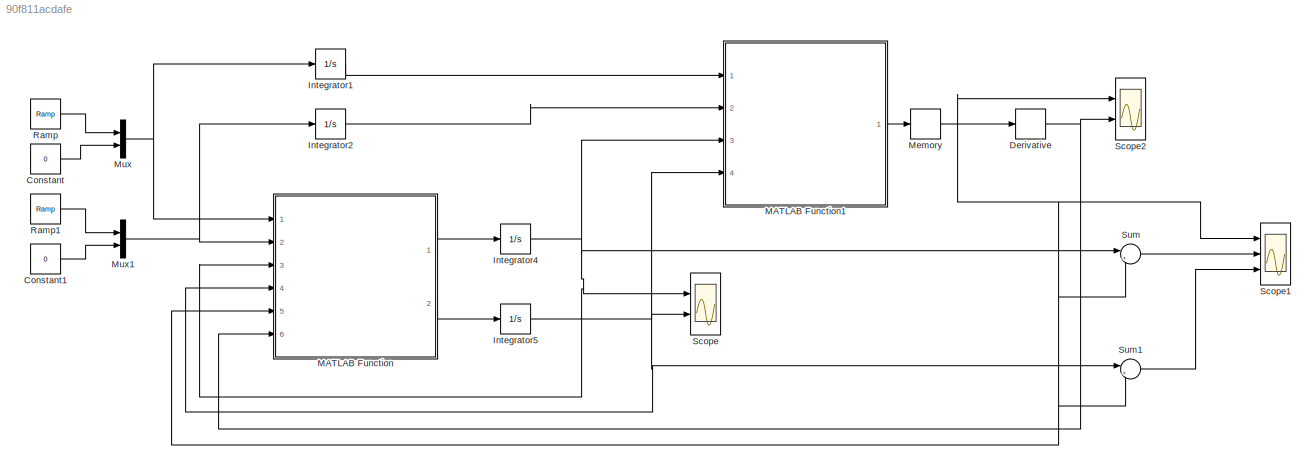
MODEL slx_90f811acdafe
KIND model
CONFIG AbsTol = auto
CONFIG EnableMultiTasking = off
CONFIG FixedStep = auto
CONFIG MaxStep = auto
CONFIG MinStep = auto
CONFIG RelTol = 1e-3
CONFIG SampleTimeConstraint = Unconstrained
CONFIG Solver = VariableStepAuto
CONFIG SolverName = VariableStepAuto
CONFIG StartTime = 0.0
CONFIG StopTime = 60
BLOCK [Constant] Constant
  Value = 0
BLOCK [Constant] Constant1
  Value = 0
BLOCK [Derivative] Derivative
BLOCK [Integrator] Integrator1
  InitialCondition = [0;0]
  Ports = [1, 1]
BLOCK [Integrator] Integrator2
  InitialCondition = [0;0]
  Ports = [1, 1]
BLOCK [Integrator] Integrator4
  InitialCondition = pi/4
  Ports = [1, 1]
BLOCK [Integrator] Integrator5
  InitialCondition = pi/4
  Ports = [1, 1]
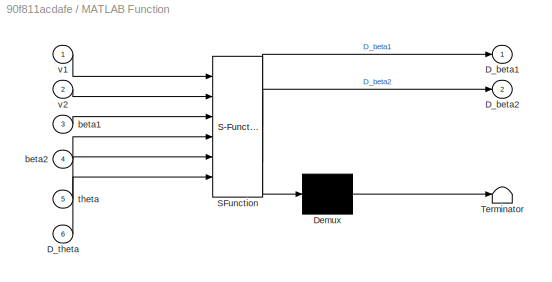
BLOCK [SubSystem] MATLAB Function
  ErrorFcn = Stateflow.Translate.translate
  PermitHierarchicalResolution = ExplicitOnly
  Ports = [6, 2]
  RequestExecContextInheritance = off
  SFBlockType = MATLAB Function
  TreatAsAtomicUnit = on
BLOCK [Demux] MATLAB Function/ Demux 
  Outputs = 1
  Ports = [1, 1]
BLOCK [S-Function] MATLAB Function/ SFunction 
  EnableBusSupport = on
  FunctionName = sf_sfun
  PortCounts = [6 3]
  Ports = [6, 3]
  SFcnIsStateOwnerBlock = off
  SFunctionDeploymentMode = off
  Tag = Stateflow S-Function Reverse_01 2
BLOCK [Terminator] MATLAB Function/ Terminator 
BLOCK [Outport] MATLAB Function/D_beta1
  IconDisplay = Port number
BLOCK [Outport] MATLAB Function/D_beta2
  IconDisplay = Port number
  Port = 2
BLOCK [Inport] MATLAB Function/D_theta
  IconDisplay = Port number
  Port = 6
BLOCK [Inport] MATLAB Function/beta1
  IconDisplay = Port number
  Port = 3
BLOCK [Inport] MATLAB Function/beta2
  IconDisplay = Port number
  Port = 4
BLOCK [Inport] MATLAB Function/theta
  IconDisplay = Port number
  Port = 5
BLOCK [Inport] MATLAB Function/v1
  IconDisplay = Port number
BLOCK [Inport] MATLAB Function/v2
  IconDisplay = Port number
  Port = 2
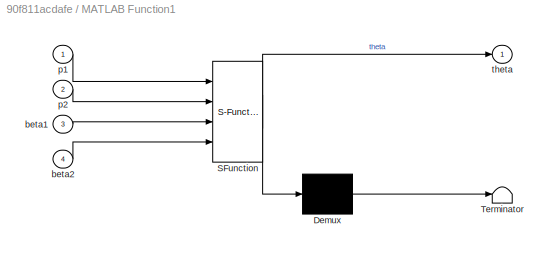
BLOCK [SubSystem] MATLAB Function1
  ErrorFcn = Stateflow.Translate.translate
  PermitHierarchicalResolution = ExplicitOnly
  Ports = [4, 1]
  RequestExecContextInheritance = off
  SFBlockType = MATLAB Function
  TreatAsAtomicUnit = on
BLOCK [Demux] MATLAB Function1/ Demux 
  Outputs = 1
  Ports = [1, 1]
BLOCK [S-Function] MATLAB Function1/ SFunction 
  EnableBusSupport = on
  FunctionName = sf_sfun
  PortCounts = [4 2]
  Ports = [4, 2]
  SFcnIsStateOwnerBlock = off
  SFunctionDeploymentMode = off
  Tag = Stateflow S-Function Reverse_01 1
BLOCK [Terminator] MATLAB Function1/ Terminator 
BLOCK [Inport] MATLAB Function1/beta1
  IconDisplay = Port number
  Port = 3
BLOCK [Inport] MATLAB Function1/beta2
  IconDisplay = Port number
  Port = 4
BLOCK [Inport] MATLAB Function1/p1
  IconDisplay = Port number
BLOCK [Inport] MATLAB Function1/p2
  IconDisplay = Port number
  Port = 2
BLOCK [Outport] MATLAB Function1/theta
  IconDisplay = Port number
BLOCK [Memory] Memory
BLOCK [Mux] Mux
  DisplayOption = bar
  Inputs = 2
  Ports = [2, 1]
BLOCK [Mux] Mux1
  DisplayOption = bar
  Inputs = 2
  Ports = [2, 1]
BLOCK [Reference] Ramp  REF=simulink/Sources/Ramp
  Ports = [0, 1]
  SourceBlock = simulink/Sources/Ramp
  SourceProductBaseCode = SL
  SourceProductName = Simulink
  SourceType = Ramp
BLOCK [Reference] Ramp1  REF=simulink/Sources/Ramp
  Ports = [0, 1]
  SourceBlock = simulink/Sources/Ramp
  SourceProductBaseCode = SL
  SourceProductName = Simulink
  SourceType = Ramp
BLOCK [Scope] Scope
  Floating = off
  NumInputPorts = 2
  Ports = [2]
  ScopeSpecificationString = Simulink.scopes.TimeScopeBlockCfg('CurrentConfiguration', extmgr.ConfigurationSet(extmgr.Configuration('Core','General UI',true),extmgr.Configuration('Core','Source UI',true),extmgr.Configuration('Sources','WiredSimulink',true),extmgr.Configuration('Visuals','Time Domain',true,'SerializedDisplays',{struct('MinYLimReal','0.5708','MaxYLimReal','2.5708','YLabelReal','','MinYLimMag','0.5708','MaxYLimM...<+1913ch>
BLOCK [Scope] Scope1
  Floating = off
  NumInputPorts = 3
  Ports = [3]
  ScopeSpecificationString = Simulink.scopes.TimeScopeBlockCfg('CurrentConfiguration', extmgr.ConfigurationSet(extmgr.Configuration('Core','General UI',true),extmgr.Configuration('Core','Source UI',true),extmgr.Configuration('Sources','WiredSimulink',true,'DataLoggingVariableName','ScopeData1'),extmgr.Configuration('Visuals','Time Domain',true,'SerializedDisplays',{struct('MinYLimReal','-10','MaxYLimReal','10','YLabelReal',''...<+2771ch>
BLOCK [Scope] Scope2
  Floating = off
  NumInputPorts = 2
  Ports = [2]
  ScopeSpecificationString = Simulink.scopes.TimeScopeBlockCfg('CurrentConfiguration', extmgr.ConfigurationSet(extmgr.Configuration('Core','General UI',true),extmgr.Configuration('Core','Source UI',true),extmgr.Configuration('Sources','WiredSimulink',true,'DataLoggingVariableName','ScopeData2'),extmgr.Configuration('Visuals','Time Domain',true,'SerializedDisplays',{struct('MinYLimReal','-1.00000','MaxYLimReal','1.00000','YLab...<+1969ch>
BLOCK [Sum] Sum
  IconShape = round
  InputSameDT = off
  Inputs = |+-
  OutDataTypeStr = Inherit: Inherit via internal rule
  Ports = [2, 1]
  SaturateOnIntegerOverflow = off
BLOCK [Sum] Sum1
  IconShape = round
  InputSameDT = off
  Inputs = |+-
  OutDataTypeStr = Inherit: Inherit via internal rule
  Ports = [2, 1]
  SaturateOnIntegerOverflow = off
LINE Constant1:1 -> Mux1:2
LINE Constant:1 -> Mux:2
NET Derivative:1 -> MATLAB Function:6, Scope2:2
LINE Integrator1:1 -> MATLAB Function1:1
LINE Integrator2:1 -> MATLAB Function1:2
NET Integrator4:1 -> MATLAB Function1:3, MATLAB Function:3, Scope:1, Sum:1
NET Integrator5:1 -> MATLAB Function1:4, MATLAB Function:4, Scope:2, Sum1:1
LINE MATLAB Function1:1 -> Memory:1
LINE MATLAB Function:1 -> Integrator4:1
LINE MATLAB Function:2 -> Integrator5:1
NET Memory:1 -> Derivative:1, MATLAB Function:5, Scope1:1, Scope2:1, Sum1:2, Sum:2
NET Mux1:1 -> Integrator2:1, MATLAB Function:2
NET Mux:1 -> Integrator1:1, MATLAB Function:1
LINE Ramp1:1 -> Mux1:1
LINE Ramp:1 -> Mux:1
LINE Sum1:1 -> Scope1:3
LINE Sum:1 -> Scope1:2
note: NET lines group one-source signal fan-out (src -> all destinations, sorted); 1:1 wires keep LINE
CHART MATLAB Function1 states=1 transitions=1
  STATE_LABEL 'eML_blk_kernel()'
  STATE_LABEL 'SCRIPT:\nfunction theta = fcn(p1,p2,beta1,beta2)\n\nl = 1;\n\ntheta = atan( (p1(2)-p2(2)-l*(sin(beta1)+sin(beta2))) / (p1(1)-p2(1)-l*(cos(beta1)+cos(beta2))) ); \n\nend\n'
CHART MATLAB Function states=1 transitions=1
  STATE_LABEL 'eML_blk_kernel()'
  STATE_LABEL "SCRIPT:\nfunction [D_beta1,D_beta2] = fcn(v1,v2,beta1,beta2,theta,D_theta)\n\nl = 1;\nd = 1;\n\nF = [v1(1)-v2(1);v1(2)-v2(2)];\n\nA = [-l*sin(beta1) -1*sin(beta2);\n    l*cos(beta1) l*cos(beta2)];\n\nB = [-2*d*D_theta*sin(theta);2*d*D_theta*cos(theta)];\n\nDX = ((A'*A)^(-1)) * A' * (F-B);\n\nD_beta1 = DX(1);\nD_beta2 = DX(2);\n\nend\n"
